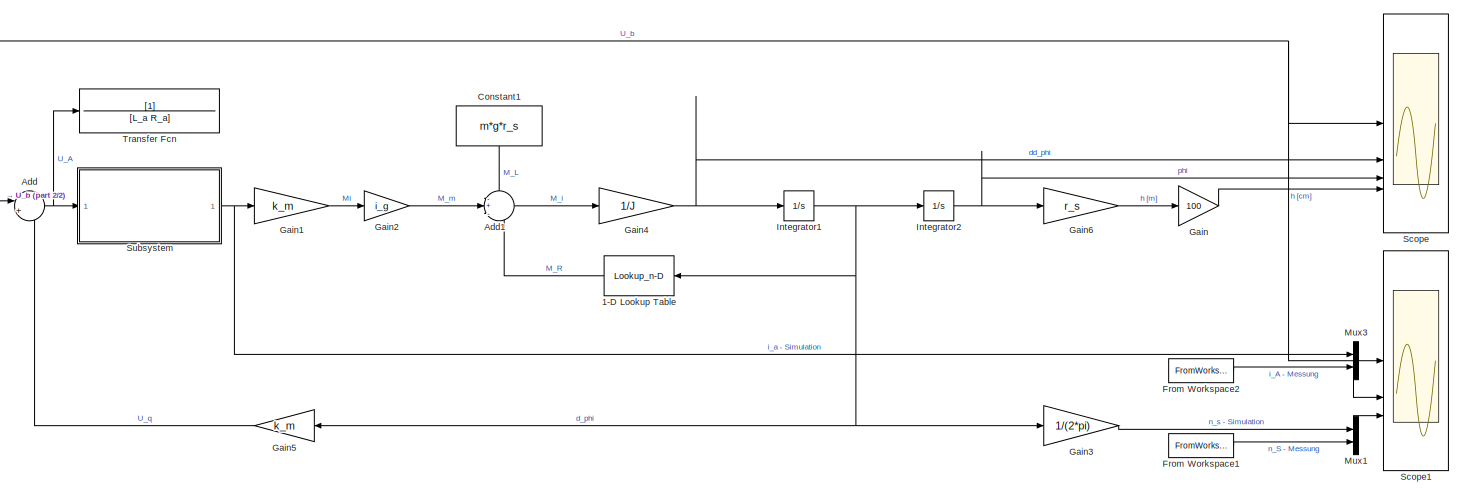
[diagram: root canvas - part 1/2, most of the canvas]
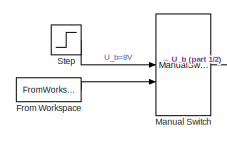
[diagram: root canvas - part 2/2, middle left region]
MODEL slx_6f48891c76b5
KIND model
CONFIG AbsTol = auto
CONFIG EnableMultiTasking = off
CONFIG FixedStep = 0.001
CONFIG MaxStep = auto
CONFIG MinStep = auto
CONFIG RelTol = 1e-3
CONFIG SampleTimeConstraint = Unconstrained
CONFIG SolverName = ode3
CONFIG StartTime = 0.0
CONFIG StopTime = 10.0
BLOCK [Lookup_n-D] 1-D Lookup Table
  BreakpointsForDimension1 = KL_REIB(1,:)
  InputPortMap = u0
  InternalRulePriority = Speed
  NumberOfTableDimensions = 1
  RndMeth = Simplest
  Table = KL_REIB(2,:)
BLOCK [Sum] Add
  Inputs = |+-
BLOCK [Sum] Add1
  Inputs = -+-
BLOCK [Constant] Constant1
  NameLocation = left
  Value = m*g*r_s
BLOCK [FromWorkspace] From Workspace
  VariableName = [Zeit, U_B]
BLOCK [FromWorkspace] From Workspace1
  VariableName = [Zeit n_S]
BLOCK [FromWorkspace] From Workspace2
  VariableName = [Zeit i_A]
BLOCK [Gain] Gain
  Gain = 100
BLOCK [Gain] Gain1
  Gain = k_m
BLOCK [Gain] Gain2
  Gain = i_g
BLOCK [Gain] Gain3
  Gain = 1/(2*pi)
BLOCK [Gain] Gain4
  Gain = 1/J
BLOCK [Gain] Gain5
  Gain = k_m
BLOCK [Gain] Gain6
  Gain = r_s
BLOCK [Integrator] Integrator1
BLOCK [Integrator] Integrator2
BLOCK [ManualSwitch] Manual Switch
  CurrentSetting = 0
BLOCK [Mux] Mux1
  DisplayOption = bar
  Inputs = 2
BLOCK [Mux] Mux3
  DisplayOption = bar
  Inputs = 2
BLOCK [Scope] Scope
  Floating = off
  NumInputPorts = 4
  ScopeSpecificationString = Simulink.scopes.TimeScopeBlockCfg('CurrentConfiguration', extmgr.ConfigurationSet(extmgr.Configuration('Core','General UI',true),extmgr.Configuration('Core','Source UI',true),extmgr.Configuration('Sources','WiredSimulink',true),extmgr.Configuration('Visuals','Time Domain',true,'SerializedDisplays',{struct('MinYLimReal','-1.00000','MaxYLimReal','9.00000','YLabelReal','U_B [V]','MinYLimMag','0.00000...<+4624ch>
BLOCK [Scope] Scope1
  Floating = off
  NumInputPorts = 3
  ScopeSpecificationString = Simulink.scopes.TimeScopeBlockCfg('CurrentConfiguration', extmgr.ConfigurationSet(extmgr.Configuration('Core','General UI',true),extmgr.Configuration('Core','Source UI',true),extmgr.Configuration('Sources','WiredSimulink',true,'DataLoggingVariableName','ScopeData1'),extmgr.Configuration('Visuals','Time Domain',true,'SerializedDisplays',{struct('MinYLimReal','-27.66979','MaxYLimReal','29.55807','YL...<+3580ch>
BLOCK [Step] Step
  After = 8
  SampleTime = 0
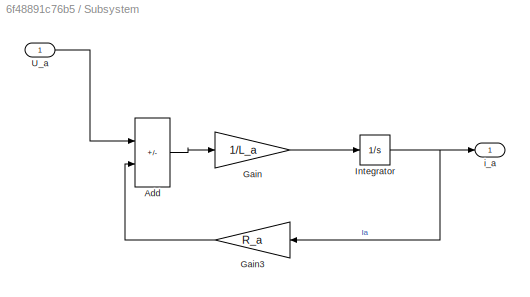
BLOCK [SubSystem] Subsystem
BLOCK [Sum] Subsystem/Add
  IconShape = rectangular
  Inputs = +-
BLOCK [Gain] Subsystem/Gain
  Gain = 1/L_a
BLOCK [Gain] Subsystem/Gain3
  Gain = R_a
BLOCK [Integrator] Subsystem/Integrator
BLOCK [Inport] Subsystem/U_a
BLOCK [Outport] Subsystem/i_a
BLOCK [TransferFcn] Transfer Fcn
  Commented = on
  Denominator = [L_a R_a]
LINE 1-D Lookup Table:1 -> Add1:3
LINE Add1:1 -> Gain4:1
NET Add:1 -> Subsystem:1, Transfer Fcn:1
LINE Constant1:1 -> Add1:1
LINE From Workspace1:1 -> Mux1:2
LINE From Workspace2:1 -> Mux3:2
LINE From Workspace:1 -> Manual Switch:2
LINE Gain1:1 -> Gain2:1
LINE Gain2:1 -> Add1:2
LINE Gain3:1 -> Mux1:1
NET Gain4:1 -> Integrator1:1, Scope:2
LINE Gain5:1 -> Add:2
LINE Gain6:1 -> Gain:1
LINE Gain:1 -> Scope:4
NET Integrator1:1 -> 1-D Lookup Table:1, Gain3:1, Gain5:1, Integrator2:1
NET Integrator2:1 -> Gain6:1, Scope:3
NET Manual Switch:1 -> Add:1, Scope1:1, Scope:1
LINE Mux1:1 -> Scope1:3
LINE Mux3:1 -> Scope1:2
LINE Step:1 -> Manual Switch:1
LINE Subsystem/Add:1 -> Subsystem/Gain:1
LINE Subsystem/Gain3:1 -> Subsystem/Add:2
LINE Subsystem/Gain:1 -> Subsystem/Integrator:1
NET Subsystem/Integrator:1 -> Subsystem/Gain3:1, Subsystem/i_a:1
LINE Subsystem/U_a:1 -> Subsystem/Add:1
NET Subsystem:1 -> Gain1:1, Mux3:1
note: NET lines group one-source signal fan-out (src -> all destinations, sorted); 1:1 wires keep LINE
